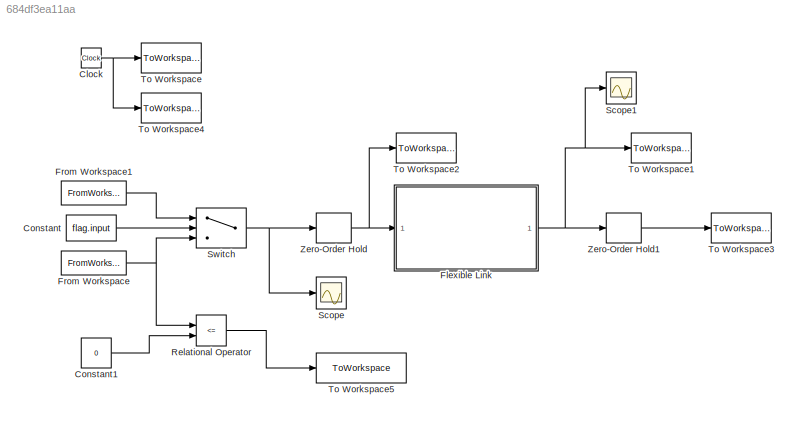
MODEL slx_684df3ea11aa
KIND model
CONFIG AbsTol = auto
CONFIG EnableMultiTasking = on
CONFIG FixedStep = auto
CONFIG MaxStep = auto
CONFIG MinStep = auto
CONFIG RelTol = 1e-6
CONFIG SampleTimeConstraint = Unconstrained
CONFIG Solver = ode45
CONFIG SolverName = ode45
CONFIG StartTime = 0.0
CONFIG StopTime = tfinal
BLOCK [Clock] Clock
BLOCK [Constant] Constant
  Value = flag.input
BLOCK [Constant] Constant1
  Value = 0
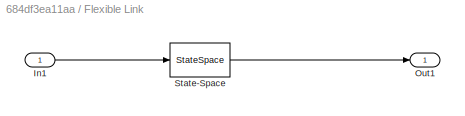
BLOCK [SubSystem] Flexible Link
  Ports = [1, 1]
  RequestExecContextInheritance = off
BLOCK [Inport] Flexible Link/In1
BLOCK [Outport] Flexible Link/Out1
BLOCK [StateSpace] Flexible Link/State-Space
  A = Atrue
  B = Btrue
  C = Ctrue
  D = Dtrue
  InitialCondition = 0
  Ports = [1, 1]
BLOCK [FromWorkspace] From Workspace
  VariableName = PRBS.input
BLOCK [FromWorkspace] From Workspace1
  VariableName = Square.input
BLOCK [RelationalOperator] Relational Operator
  InputSameDT = off
  Operator = <=
  OutDataTypeStr = boolean
  Ports = [2, 1]
  RndMeth = Simplest
BLOCK [Scope] Scope
  Floating = off
  NumInputPorts = 1
  Ports = [1]
  ScopeSpecificationString = Simulink.scopes.TimeScopeBlockCfg('CurrentConfiguration', extmgr.ConfigurationSet(extmgr.Configuration('Core','General UI',true),extmgr.Configuration('Core','Source UI',true),extmgr.Configuration('Sources','WiredSimulink',true),extmgr.Configuration('Visuals','Time Domain',true,'SerializedDisplays',{struct('MinYLimReal','-1.25','MaxYLimReal','1.25','YLabelReal','','MinYLimMag','0.00000','MaxYLimMag...<+1681ch>
BLOCK [Scope] Scope1
  Floating = off
  NumInputPorts = 1
  Ports = [1]
  ScopeSpecificationString = Simulink.scopes.TimeScopeBlockCfg('CurrentConfiguration', extmgr.ConfigurationSet(extmgr.Configuration('Core','General UI',true),extmgr.Configuration('Core','Source UI',true),extmgr.Configuration('Sources','WiredSimulink',true,'DataLoggingVariableName','ScopeData1'),extmgr.Configuration('Visuals','Time Domain',true,'SerializedDisplays',{struct('MinYLimReal','-17.6677','MaxYLimReal','2.51708','YLab...<+1401ch>
BLOCK [Switch] Switch
  Criteria = u2 > Threshold
  InputSameDT = off
  SaturateOnIntegerOverflow = off
BLOCK [ToWorkspace] To Workspace
  FixptAsFi = on
  MaxDataPoints = inf
  Ports = [1]
  SampleTime = -1
  VariableName = t
BLOCK [ToWorkspace] To Workspace1
  FixptAsFi = on
  MaxDataPoints = inf
  Ports = [1]
  SampleTime = -1
  VariableName = y
BLOCK [ToWorkspace] To Workspace2
  FixptAsFi = on
  MaxDataPoints = inf
  Ports = [1]
  SampleTime = Ts
  VariableName = us
BLOCK [ToWorkspace] To Workspace3
  FixptAsFi = on
  MaxDataPoints = inf
  Ports = [1]
  SampleTime = Ts
  VariableName = ys
BLOCK [ToWorkspace] To Workspace4
  FixptAsFi = on
  MaxDataPoints = inf
  Ports = [1]
  SampleTime = Ts
  VariableName = ts
BLOCK [ToWorkspace] To Workspace5
  FixptAsFi = on
  MaxDataPoints = inf
  Ports = [1]
  SampleTime = -1
  SaveFormat = Timeseries
  VariableName = aux
BLOCK [ZeroOrderHold] Zero-Order Hold
  SampleTime = Ts
BLOCK [ZeroOrderHold] Zero-Order Hold1
  SampleTime = Ts
NET Clock:1 -> To Workspace4:1, To Workspace:1
LINE Constant1:1 -> Relational Operator:2
LINE Constant:1 -> Switch:2
LINE Flexible Link/In1:1 -> Flexible Link/State-Space:1
LINE Flexible Link/State-Space:1 -> Flexible Link/Out1:1
NET Flexible Link:1 -> Scope1:1, To Workspace1:1, Zero-Order Hold1:1
LINE From Workspace1:1 -> Switch:1
NET From Workspace:1 -> Relational Operator:1, Switch:3
LINE Relational Operator:1 -> To Workspace5:1
NET Switch:1 -> Scope:1, Zero-Order Hold:1
LINE Zero-Order Hold1:1 -> To Workspace3:1
NET Zero-Order Hold:1 -> Flexible Link:1, To Workspace2:1
note: NET lines group one-source signal fan-out (src -> all destinations, sorted); 1:1 wires keep LINE
